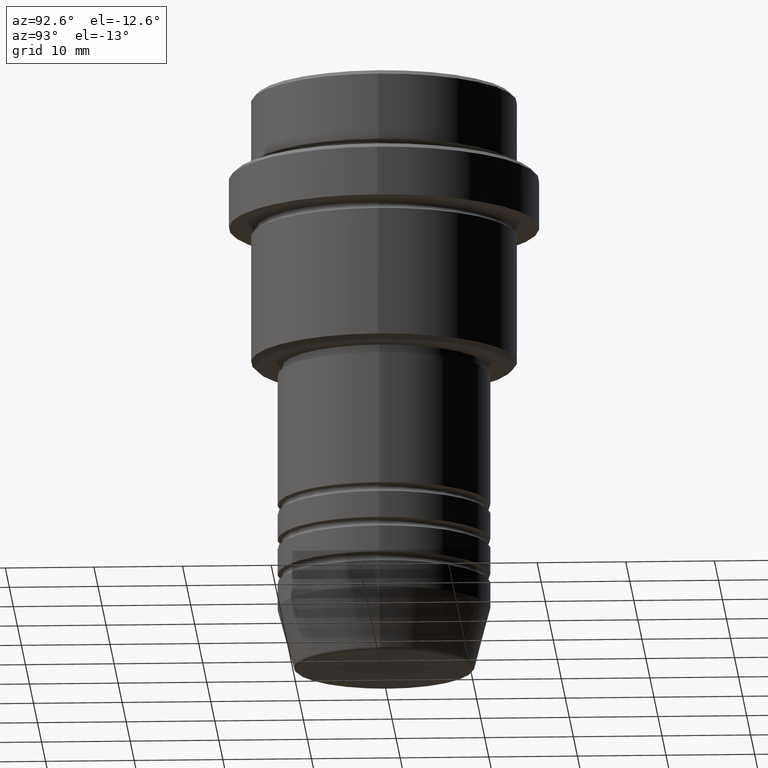
[diagram: clean part render]
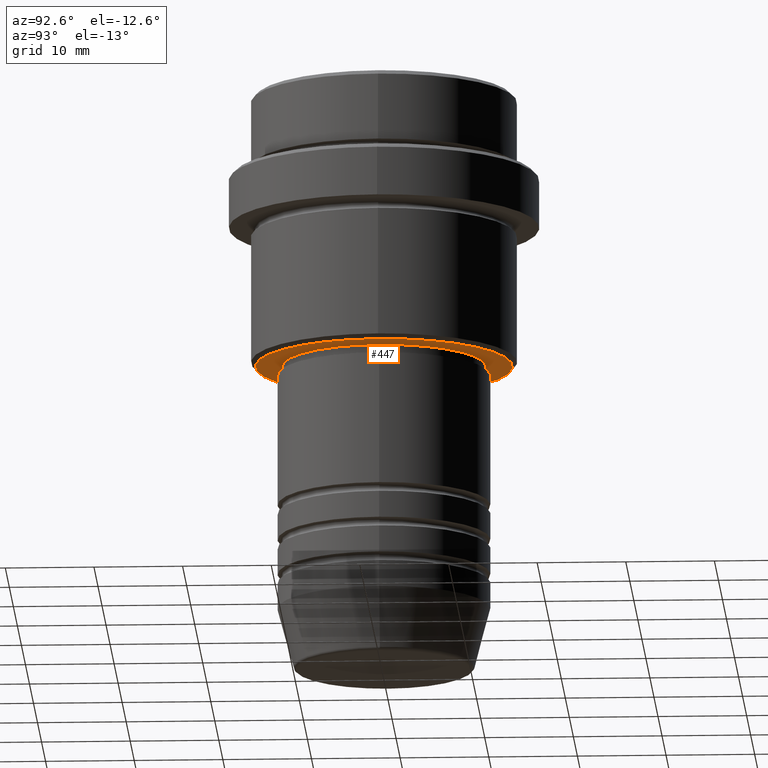
[diagram: same view with one face highlighted and labeled with its STEP entity id]
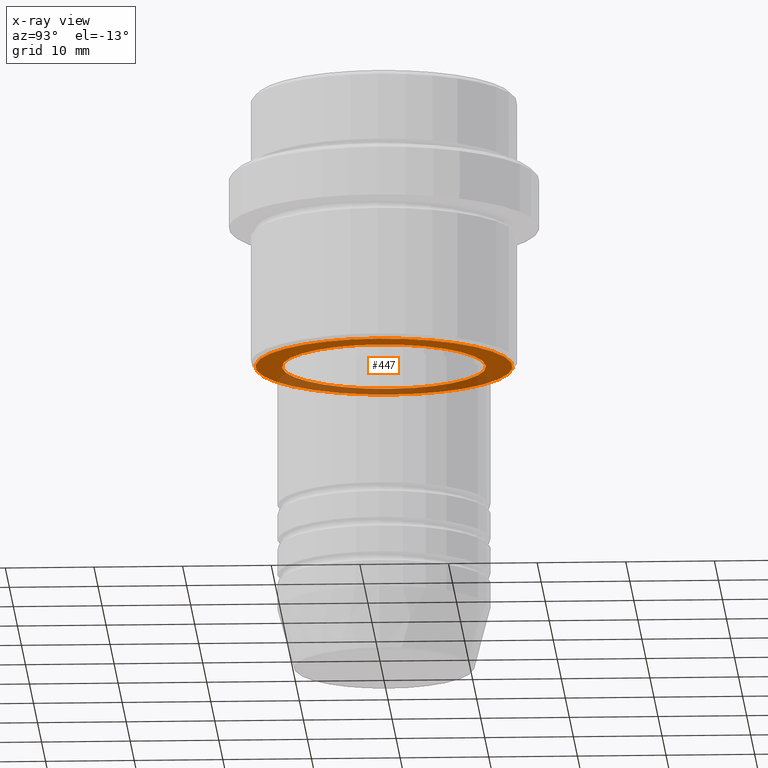
[diagram: x-ray of the same camera — body ghosted, the highlighted face saturated]
A machine part, auxiliary view. The second image highlights one B-rep face of the part: STEP entity #447.
The next image is the same camera in x-ray: the body ghosted, the highlighted face saturated — about 35% of this face is hidden behind the body in this view.
In plain terms, the highlighted planar face has unit normal (0, 0, -1).
Its self-contained STEP definition (entity closure, byte-faithful):
#55 = ORIENTED_EDGE ( 'NONE', *, *, #493, .T. ) ;
#67 = AXIS2_PLACEMENT_3D ( 'NONE', #350, #134, #991 ) ;
#134 = DIRECTION ( 'NONE',  ( 0.000000000000000000, 0.000000000000000000, -1.000000000000000000 ) ) ;
#146 = DIRECTION ( 'NONE',  ( -0.000000000000000000, -0.000000000000000000, 1.000000000000000000 ) ) ;
#196 = EDGE_CURVE ( 'NONE', #242, #819, #674, .T. ) ;
#242 = VERTEX_POINT ( 'NONE', #981 ) ;
#307 = CIRCLE ( 'NONE', #67, 14.49999999999999289 ) ;
#350 = CARTESIAN_POINT ( 'NONE',  ( 0.000000000000000000, 0.000000000000000000, -31.00000000000000000 ) ) ;
#396 = CARTESIAN_POINT ( 'NONE',  ( 0.000000000000000000, 15.00000000000000000, -31.00000000000000000 ) ) ;
#409 = EDGE_CURVE ( 'NONE', #474, #690, #446, .T. ) ;
#446 = CIRCLE ( 'NONE', #1257, 11.49999999999999467 ) ;
#447 = ADVANCED_FACE ( 'NONE', ( #720, #705 ), #619, .T. ) ;
#474 = VERTEX_POINT ( 'NONE', #1357 ) ;
#493 = EDGE_CURVE ( 'NONE', #690, #474, #1389, .T. ) ;
#524 = EDGE_LOOP ( 'NONE', ( #55, #867 ) ) ;
#539 = CARTESIAN_POINT ( 'NONE',  ( 0.000000000000000000, 0.000000000000000000, -31.00000000000000000 ) ) ;
#555 = DIRECTION ( 'NONE',  ( -1.000000000000000000, 0.000000000000000000, 0.000000000000000000 ) ) ;
#559 = CARTESIAN_POINT ( 'NONE',  ( 11.49999999999999467, 0.000000000000000000, -31.00000000000000000 ) ) ;
#595 = DIRECTION ( 'NONE',  ( 1.000000000000000000, 0.000000000000000000, 0.000000000000000000 ) ) ;
#601 = DIRECTION ( 'NONE',  ( -1.000000000000000000, 0.000000000000000000, -0.000000000000000000 ) ) ;
#619 = PLANE ( 'NONE',  #695 ) ;
#674 = CIRCLE ( 'NONE', #1347, 14.49999999999999289 ) ;
#685 = EDGE_LOOP ( 'NONE', ( #1380, #911 ) ) ;
#690 = VERTEX_POINT ( 'NONE', #559 ) ;
#695 = AXIS2_PLACEMENT_3D ( 'NONE', #396, #1037, #601 ) ;
#705 = FACE_BOUND ( 'NONE', #524, .T. ) ;
#720 = FACE_OUTER_BOUND ( 'NONE', #685, .T. ) ;
#819 = VERTEX_POINT ( 'NONE', #887 ) ;
#830 = DIRECTION ( 'NONE',  ( -0.000000000000000000, -0.000000000000000000, 1.000000000000000000 ) ) ;
#864 = DIRECTION ( 'NONE',  ( 0.000000000000000000, 0.000000000000000000, -1.000000000000000000 ) ) ;
#867 = ORIENTED_EDGE ( 'NONE', *, *, #409, .T. ) ;
#887 = CARTESIAN_POINT ( 'NONE',  ( -14.49999999999999289, 1.806354028742345407E-15, -31.00000000000000000 ) ) ;
#911 = ORIENTED_EDGE ( 'NONE', *, *, #1243, .T. ) ;
#918 = AXIS2_PLACEMENT_3D ( 'NONE', #935, #830, #1364 ) ;
#935 = CARTESIAN_POINT ( 'NONE',  ( 0.000000000000000000, 0.000000000000000000, -31.00000000000000000 ) ) ;
#981 = CARTESIAN_POINT ( 'NONE',  ( 14.49999999999999289, 0.000000000000000000, -31.00000000000000000 ) ) ;
#991 = DIRECTION ( 'NONE',  ( -1.000000000000000000, 0.000000000000000000, 0.000000000000000000 ) ) ;
#1037 = DIRECTION ( 'NONE',  ( 0.000000000000000000, 0.000000000000000000, -1.000000000000000000 ) ) ;
#1207 = CARTESIAN_POINT ( 'NONE',  ( 0.000000000000000000, 0.000000000000000000, -31.00000000000000000 ) ) ;
#1243 = EDGE_CURVE ( 'NONE', #819, #242, #307, .T. ) ;
#1257 = AXIS2_PLACEMENT_3D ( 'NONE', #1207, #146, #595 ) ;
#1347 = AXIS2_PLACEMENT_3D ( 'NONE', #539, #864, #555 ) ;
#1357 = CARTESIAN_POINT ( 'NONE',  ( -11.49999999999999467, 1.408343819019455781E-15, -31.00000000000000000 ) ) ;
#1364 = DIRECTION ( 'NONE',  ( 1.000000000000000000, 0.000000000000000000, 0.000000000000000000 ) ) ;
#1380 = ORIENTED_EDGE ( 'NONE', *, *, #196, .T. ) ;
#1389 = CIRCLE ( 'NONE', #918, 11.49999999999999467 ) ;